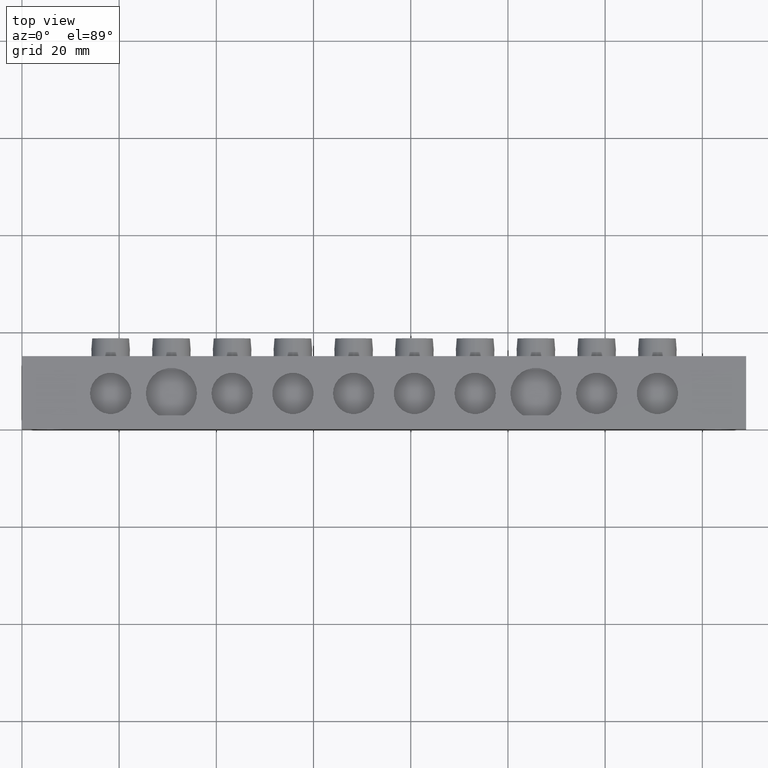
[diagram: clean part render]
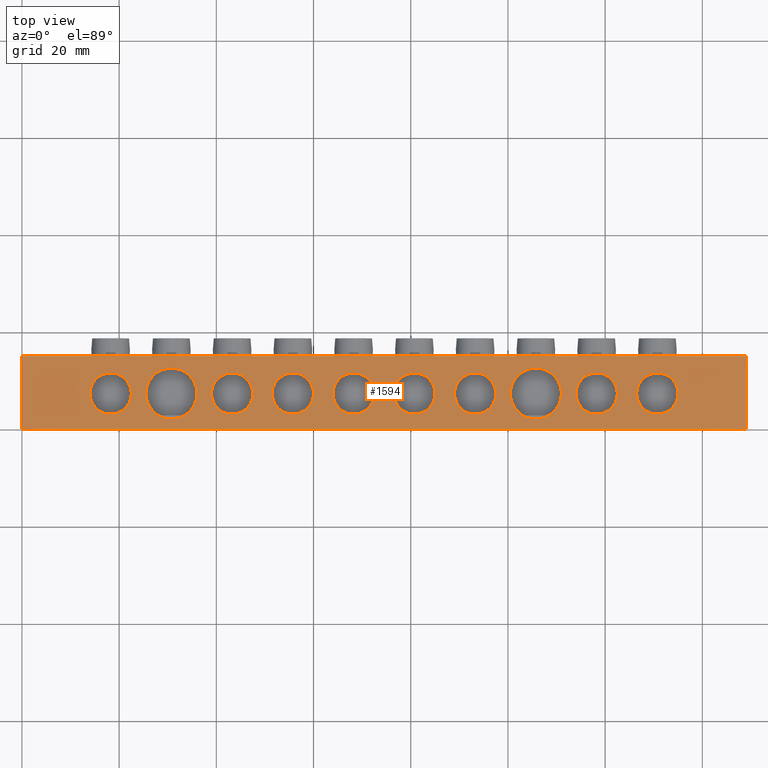
[diagram: same view with one face highlighted and labeled with its STEP entity id]
A machine part, top view. The second image highlights one B-rep face of the part: STEP entity #1594.
In plain terms, the highlighted planar face has unit normal (0, 0, -1).
Its self-contained STEP definition (entity closure, byte-faithful):
#182 = VERTEX_POINT ( 'NONE', #1309 ) ;
#199 = VERTEX_POINT ( 'NONE', #1294 ) ;
#201 = VERTEX_POINT ( 'NONE', #1296 ) ;
#203 = VERTEX_POINT ( 'NONE', #1289 ) ;
#222 = VERTEX_POINT ( 'NONE', #6000 ) ;
#230 = ORIENTED_EDGE ( 'NONE', *, *, #3902, .F. ) ;
#238 = ORIENTED_EDGE ( 'NONE', *, *, #3831, .F. ) ;
#239 = ORIENTED_EDGE ( 'NONE', *, *, #3887, .F. ) ;
#246 = ORIENTED_EDGE ( 'NONE', *, *, #3790, .F. ) ;
#259 = ORIENTED_EDGE ( 'NONE', *, *, #3814, .F. ) ;
#263 = ORIENTED_EDGE ( 'NONE', *, *, #3913, .F. ) ;
#265 = ORIENTED_EDGE ( 'NONE', *, *, #3819, .F. ) ;
#269 = ORIENTED_EDGE ( 'NONE', *, *, #3874, .F. ) ;
#279 = ORIENTED_EDGE ( 'NONE', *, *, #3631, .F. ) ;
#280 = ORIENTED_EDGE ( 'NONE', *, *, #3671, .F. ) ;
#284 = ORIENTED_EDGE ( 'NONE', *, *, #3911, .F. ) ;
#288 = ORIENTED_EDGE ( 'NONE', *, *, #3893, .F. ) ;
#291 = ORIENTED_EDGE ( 'NONE', *, *, #3822, .F. ) ;
#485 = VERTEX_POINT ( 'NONE', #5983 ) ;
#488 = VERTEX_POINT ( 'NONE', #5985 ) ;
#489 = VERTEX_POINT ( 'NONE', #6020 ) ;
#492 = VERTEX_POINT ( 'NONE', #5986 ) ;
#496 = VERTEX_POINT ( 'NONE', #6027 ) ;
#503 = VERTEX_POINT ( 'NONE', #6018 ) ;
#519 = VERTEX_POINT ( 'NONE', #6005 ) ;
#523 = VERTEX_POINT ( 'NONE', #6022 ) ;
#524 = VERTEX_POINT ( 'NONE', #6014 ) ;
#534 = VERTEX_POINT ( 'NONE', #6015 ) ;
#535 = VERTEX_POINT ( 'NONE', #6011 ) ;
#557 = VERTEX_POINT ( 'NONE', #6030 ) ;
#937 = EDGE_LOOP ( 'NONE', ( #230, #265 ) ) ;
#990 = EDGE_LOOP ( 'NONE', ( #288, #259 ) ) ;
#998 = EDGE_LOOP ( 'NONE', ( #269, #280 ) ) ;
#1003 = EDGE_LOOP ( 'NONE', ( #6476, #6479, #6506, #6477 ) ) ;
#1005 = EDGE_LOOP ( 'NONE', ( #239, #279 ) ) ;
#1007 = EDGE_LOOP ( 'NONE', ( #1323, #1312 ) ) ;
#1013 = EDGE_LOOP ( 'NONE', ( #263, #238 ) ) ;
#1020 = EDGE_LOOP ( 'NONE', ( #6507, #6509 ) ) ;
#1028 = EDGE_LOOP ( 'NONE', ( #284, #291 ) ) ;
#1036 = EDGE_LOOP ( 'NONE', ( #1319, #246 ) ) ;
#1037 = EDGE_LOOP ( 'NONE', ( #6510, #6511 ) ) ;
#1289 = CARTESIAN_POINT ( 'NONE',  ( 25.50000000000000400, 7.299999999999999800, 0.0000000000000000000 ) ) ;
#1294 = CARTESIAN_POINT ( 'NONE',  ( 22.50000000000000000, 7.299999999999998900, 0.0000000000000000000 ) ) ;
#1296 = CARTESIAN_POINT ( 'NONE',  ( 135.0000000000000000, 7.299999999999998900, 0.0000000000000000000 ) ) ;
#1309 = CARTESIAN_POINT ( 'NONE',  ( 51.50000000000000700, 7.299999999999798200, 0.0000000000000000000 ) ) ;
#1312 = ORIENTED_EDGE ( 'NONE', *, *, #3805, .F. ) ;
#1319 = ORIENTED_EDGE ( 'NONE', *, *, #3888, .F. ) ;
#1323 = ORIENTED_EDGE ( 'NONE', *, *, #3922, .F. ) ;
#1594 = ADVANCED_FACE ( 'NONE', ( #5546, #5580, #5618, #5584, #5545, #5619, #5592, #5634, #5587, #5561, #5603 ), #5599, .F. ) ;
#1765 = DIRECTION ( 'NONE',  ( -0.0000000000000000000, -0.0000000000000000000, 1.000000000000000000 ) ) ;
#1772 = DIRECTION ( 'NONE',  ( 1.000000000000000000, 0.0000000000000000000, 0.0000000000000000000 ) ) ;
#1774 = DIRECTION ( 'NONE',  ( 0.0000000000000000000, 0.0000000000000000000, 1.000000000000000000 ) ) ;
#1783 = CARTESIAN_POINT ( 'NONE',  ( 118.2500000000000300, 7.299999999999999800, 0.0000000000000000000 ) ) ;
#1788 = DIRECTION ( 'NONE',  ( 0.0000000000000000000, 0.0000000000000000000, 1.000000000000000000 ) ) ;
#1799 = DIRECTION ( 'NONE',  ( 1.000000000000000000, 0.0000000000000000000, 0.0000000000000000000 ) ) ;
#1800 = CARTESIAN_POINT ( 'NONE',  ( 80.75000000000000000, 7.299999999999971400, 0.0000000000000000000 ) ) ;
#1801 = CARTESIAN_POINT ( 'NONE',  ( 30.75000000000000000, 7.299999999999998900, 0.0000000000000000000 ) ) ;
#1838 = DIRECTION ( 'NONE',  ( -1.000000000000000000, 0.0000000000000000000, 0.0000000000000000000 ) ) ;
#1843 = DIRECTION ( 'NONE',  ( 1.000000000000000000, 0.0000000000000000000, 0.0000000000000000000 ) ) ;
#1854 = DIRECTION ( 'NONE',  ( 0.0000000000000000000, 0.0000000000000000000, 1.000000000000000000 ) ) ;
#1861 = CARTESIAN_POINT ( 'NONE',  ( 130.7500000000000000, 7.299999999999998900, 0.0000000000000000000 ) ) ;
#1878 = CARTESIAN_POINT ( 'NONE',  ( 105.7500000000000100, 7.300000000000002500, 0.0000000000000000000 ) ) ;
#1880 = DIRECTION ( 'NONE',  ( 0.0000000000000000000, 0.0000000000000000000, 1.000000000000000000 ) ) ;
#1881 = DIRECTION ( 'NONE',  ( 0.0000000000000000000, 0.0000000000000000000, 1.000000000000000000 ) ) ;
#1883 = DIRECTION ( 'NONE',  ( 1.000000000000000000, 0.0000000000000000000, 0.0000000000000000000 ) ) ;
#1888 = DIRECTION ( 'NONE',  ( -1.000000000000000000, 0.0000000000000000000, 0.0000000000000000000 ) ) ;
#1890 = CARTESIAN_POINT ( 'NONE',  ( 68.25000000000000000, 7.299999999999883500, 0.0000000000000000000 ) ) ;
#1893 = DIRECTION ( 'NONE',  ( -0.0000000000000000000, -0.0000000000000000000, 1.000000000000000000 ) ) ;
#1895 = CARTESIAN_POINT ( 'NONE',  ( 43.25000000000001400, 7.299999999999709400, 0.0000000000000000000 ) ) ;
#1897 = DIRECTION ( 'NONE',  ( 1.000000000000000000, 0.0000000000000000000, 0.0000000000000000000 ) ) ;
#1903 = CARTESIAN_POINT ( 'NONE',  ( 93.25000000000000000, 7.299999999999971400, 0.0000000000000000000 ) ) ;
#1904 = DIRECTION ( 'NONE',  ( 1.000000000000000000, 0.0000000000000000000, 0.0000000000000000000 ) ) ;
#1915 = DIRECTION ( 'NONE',  ( 0.0000000000000000000, 0.0000000000000000000, 1.000000000000000000 ) ) ;
#1938 = LINE ( 'NONE', #1969, #2532 ) ;
#1939 = DIRECTION ( 'NONE',  ( -0.0000000000000000000, -1.000000000000000000, -0.0000000000000000000 ) ) ;
#1941 = DIRECTION ( 'NONE',  ( 0.0000000000000000000, 0.0000000000000000000, 1.000000000000000000 ) ) ;
#1948 = CARTESIAN_POINT ( 'NONE',  ( 80.75000000000000000, 7.299999999999971400, 0.0000000000000000000 ) ) ;
#1961 = DIRECTION ( 'NONE',  ( 1.000000000000000000, 0.0000000000000000000, 0.0000000000000000000 ) ) ;
#1969 = CARTESIAN_POINT ( 'NONE',  ( 149.0000000000000000, 15.00000000000000000, 0.0000000000000000000 ) ) ;
#2001 = CARTESIAN_POINT ( 'NONE',  ( 55.75000000000000700, 7.299999999999797300, 0.0000000000000000000 ) ) ;
#2002 = DIRECTION ( 'NONE',  ( 0.0000000000000000000, 0.0000000000000000000, 1.000000000000000000 ) ) ;
#2003 = DIRECTION ( 'NONE',  ( 1.000000000000000000, 0.0000000000000000000, 0.0000000000000000000 ) ) ;
#2004 = DIRECTION ( 'NONE',  ( -0.0000000000000000000, -0.0000000000000000000, 1.000000000000000000 ) ) ;
#2005 = DIRECTION ( 'NONE',  ( -1.000000000000000000, 0.0000000000000000000, 0.0000000000000000000 ) ) ;
#2006 = CARTESIAN_POINT ( 'NONE',  ( 118.2500000000000300, 7.299999999999999800, 0.0000000000000000000 ) ) ;
#2026 = DIRECTION ( 'NONE',  ( -1.000000000000000000, 0.0000000000000000000, 0.0000000000000000000 ) ) ;
#2030 = DIRECTION ( 'NONE',  ( -0.0000000000000000000, -0.0000000000000000000, 1.000000000000000000 ) ) ;
#2034 = CARTESIAN_POINT ( 'NONE',  ( 105.7500000000000100, 7.300000000000002500, 0.0000000000000000000 ) ) ;
#2041 = LINE ( 'NONE', #2072, #2552 ) ;
#2043 = DIRECTION ( 'NONE',  ( 0.0000000000000000000, 1.000000000000000000, 0.0000000000000000000 ) ) ;
#2044 = CARTESIAN_POINT ( 'NONE',  ( 0.0000000000000000000, 15.00000000000000000, 0.0000000000000000000 ) ) ;
#2046 = LINE ( 'NONE', #2047, #2584 ) ;
#2047 = CARTESIAN_POINT ( 'NONE',  ( 0.0000000000000000000, 15.00000000000000000, 0.0000000000000000000 ) ) ;
#2049 = DIRECTION ( 'NONE',  ( 0.0000000000000000000, 0.0000000000000000000, 1.000000000000000000 ) ) ;
#2050 = CARTESIAN_POINT ( 'NONE',  ( 18.25000000000000000, 7.299999999999998900, 0.0000000000000000000 ) ) ;
#2054 = DIRECTION ( 'NONE',  ( 1.000000000000000000, 0.0000000000000000000, 0.0000000000000000000 ) ) ;
#2056 = DIRECTION ( 'NONE',  ( 1.000000000000000000, 0.0000000000000000000, 0.0000000000000000000 ) ) ;
#2060 = LINE ( 'NONE', #2044, #2575 ) ;
#2066 = CARTESIAN_POINT ( 'NONE',  ( 68.25000000000000000, 7.299999999999883500, 0.0000000000000000000 ) ) ;
#2067 = DIRECTION ( 'NONE',  ( 0.0000000000000000000, 0.0000000000000000000, 1.000000000000000000 ) ) ;
#2072 = CARTESIAN_POINT ( 'NONE',  ( 0.0000000000000000000, 0.0000000000000000000, 0.0000000000000000000 ) ) ;
#2074 = CARTESIAN_POINT ( 'NONE',  ( 43.25000000000001400, 7.299999999999709400, 0.0000000000000000000 ) ) ;
#2075 = DIRECTION ( 'NONE',  ( 1.000000000000000000, 0.0000000000000000000, 0.0000000000000000000 ) ) ;
#2084 = DIRECTION ( 'NONE',  ( 1.000000000000000000, 0.0000000000000000000, 0.0000000000000000000 ) ) ;
#2085 = DIRECTION ( 'NONE',  ( 1.000000000000000000, 0.0000000000000000000, 0.0000000000000000000 ) ) ;
#2087 = DIRECTION ( 'NONE',  ( 0.0000000000000000000, 0.0000000000000000000, 1.000000000000000000 ) ) ;
#2089 = DIRECTION ( 'NONE',  ( 1.000000000000000000, -0.0000000000000000000, 0.0000000000000000000 ) ) ;
#2090 = CARTESIAN_POINT ( 'NONE',  ( 30.75000000000000000, 7.299999999999998900, 0.0000000000000000000 ) ) ;
#2096 = DIRECTION ( 'NONE',  ( 0.0000000000000000000, 0.0000000000000000000, 1.000000000000000000 ) ) ;
#2100 = DIRECTION ( 'NONE',  ( -1.000000000000000000, 0.0000000000000000000, -0.0000000000000000000 ) ) ;
#2106 = CARTESIAN_POINT ( 'NONE',  ( 93.25000000000000000, 7.299999999999971400, 0.0000000000000000000 ) ) ;
#2107 = DIRECTION ( 'NONE',  ( 0.0000000000000000000, 0.0000000000000000000, 1.000000000000000000 ) ) ;
#2387 = DIRECTION ( 'NONE',  ( 0.0000000000000000000, 0.0000000000000000000, 1.000000000000000000 ) ) ;
#2388 = DIRECTION ( 'NONE',  ( 1.000000000000000000, 0.0000000000000000000, 0.0000000000000000000 ) ) ;
#2391 = CARTESIAN_POINT ( 'NONE',  ( 55.75000000000000700, 7.299999999999797300, 0.0000000000000000000 ) ) ;
#2402 = CARTESIAN_POINT ( 'NONE',  ( 18.25000000000000000, 7.299999999999998900, 0.0000000000000000000 ) ) ;
#2404 = DIRECTION ( 'NONE',  ( 0.0000000000000000000, 0.0000000000000000000, 1.000000000000000000 ) ) ;
#2411 = DIRECTION ( 'NONE',  ( 1.000000000000000000, 0.0000000000000000000, 0.0000000000000000000 ) ) ;
#2427 = CIRCLE ( 'NONE', #2428, 4.250000000000003600 ) ;
#2428 = AXIS2_PLACEMENT_3D ( 'NONE', #1861, #1854, #1843 ) ;
#2432 = AXIS2_PLACEMENT_3D ( 'NONE', #1800, #1788, #1772 ) ;
#2445 = AXIS2_PLACEMENT_3D ( 'NONE', #1801, #1774, #1799 ) ;
#2446 = AXIS2_PLACEMENT_3D ( 'NONE', #1783, #1765, #1838 ) ;
#2456 = CIRCLE ( 'NONE', #2446, 4.250000000000003600 ) ;
#2466 = CIRCLE ( 'NONE', #2445, 5.249999999999997300 ) ;
#2472 = CIRCLE ( 'NONE', #2432, 4.250000000000003600 ) ;
#2485 = CIRCLE ( 'NONE', #2537, 5.250000000000004400 ) ;
#2495 = CIRCLE ( 'NONE', #2544, 4.250000000000003600 ) ;
#2498 = CIRCLE ( 'NONE', #2499, 4.250000000000003600 ) ;
#2499 = AXIS2_PLACEMENT_3D ( 'NONE', #2001, #2002, #2003 ) ;
#2508 = CIRCLE ( 'NONE', #2533, 4.250000000000003600 ) ;
#2514 = AXIS2_PLACEMENT_3D ( 'NONE', #1948, #1941, #1961 ) ;
#2523 = CIRCLE ( 'NONE', #2529, 4.250000000000003600 ) ;
#2529 = AXIS2_PLACEMENT_3D ( 'NONE', #1895, #1881, #1883 ) ;
#2530 = CIRCLE ( 'NONE', #2538, 4.250000000000003600 ) ;
#2532 = VECTOR ( 'NONE', #1939, 1000.000000000000000 ) ;
#2533 = AXIS2_PLACEMENT_3D ( 'NONE', #2006, #2004, #2005 ) ;
#2537 = AXIS2_PLACEMENT_3D ( 'NONE', #1878, #1893, #1888 ) ;
#2538 = AXIS2_PLACEMENT_3D ( 'NONE', #1903, #1915, #1904 ) ;
#2541 = CIRCLE ( 'NONE', #2514, 4.250000000000003600 ) ;
#2544 = AXIS2_PLACEMENT_3D ( 'NONE', #1890, #1880, #1897 ) ;
#2548 = CIRCLE ( 'NONE', #2589, 4.250000000000003600 ) ;
#2549 = AXIS2_PLACEMENT_3D ( 'NONE', #2034, #2030, #2026 ) ;
#2552 = VECTOR ( 'NONE', #2100, 1000.000000000000000 ) ;
#2564 = AXIS2_PLACEMENT_3D ( 'NONE', #2050, #2049, #2056 ) ;
#2566 = CIRCLE ( 'NONE', #2573, 4.250000000000003600 ) ;
#2569 = AXIS2_PLACEMENT_3D ( 'NONE', #3519, #3523, #3520 ) ;
#2571 = CIRCLE ( 'NONE', #2569, 4.250000000000003600 ) ;
#2573 = AXIS2_PLACEMENT_3D ( 'NONE', #2066, #2067, #2054 ) ;
#2575 = VECTOR ( 'NONE', #2043, 1000.000000000000000 ) ;
#2577 = AXIS2_PLACEMENT_3D ( 'NONE', #2090, #2107, #2075 ) ;
#2581 = CIRCLE ( 'NONE', #2577, 5.249999999999997300 ) ;
#2584 = VECTOR ( 'NONE', #2089, 1000.000000000000000 ) ;
#2589 = AXIS2_PLACEMENT_3D ( 'NONE', #2106, #2087, #2084 ) ;
#2593 = CIRCLE ( 'NONE', #2564, 4.250000000000000000 ) ;
#2599 = CIRCLE ( 'NONE', #2602, 4.250000000000003600 ) ;
#2602 = AXIS2_PLACEMENT_3D ( 'NONE', #2074, #2096, #2085 ) ;
#2607 = CIRCLE ( 'NONE', #2549, 5.250000000000004400 ) ;
#3054 = AXIS2_PLACEMENT_3D ( 'NONE', #5596, #5593, #5597 ) ;
#3216 = AXIS2_PLACEMENT_3D ( 'NONE', #2402, #2404, #2411 ) ;
#3229 = CIRCLE ( 'NONE', #3256, 4.250000000000003600 ) ;
#3247 = CIRCLE ( 'NONE', #3216, 4.250000000000000000 ) ;
#3256 = AXIS2_PLACEMENT_3D ( 'NONE', #2391, #2387, #2388 ) ;
#3519 = CARTESIAN_POINT ( 'NONE',  ( 130.7500000000000000, 7.299999999999998900, 0.0000000000000000000 ) ) ;
#3520 = DIRECTION ( 'NONE',  ( 1.000000000000000000, 0.0000000000000000000, 0.0000000000000000000 ) ) ;
#3523 = DIRECTION ( 'NONE',  ( 0.0000000000000000000, 0.0000000000000000000, 1.000000000000000000 ) ) ;
#3631 = EDGE_CURVE ( 'NONE', #182, #535, #3229, .T. ) ;
#3635 = EDGE_CURVE ( 'NONE', #557, #199, #3247, .T. ) ;
#3671 = EDGE_CURVE ( 'NONE', #503, #492, #2472, .T. ) ;
#3673 = EDGE_CURVE ( 'NONE', #203, #222, #2466, .T. ) ;
#3790 = EDGE_CURVE ( 'NONE', #534, #488, #2456, .T. ) ;
#3805 = EDGE_CURVE ( 'NONE', #6375, #201, #2427, .T. ) ;
#3814 = EDGE_CURVE ( 'NONE', #523, #489, #2485, .T. ) ;
#3819 = EDGE_CURVE ( 'NONE', #496, #524, #2495, .T. ) ;
#3822 = EDGE_CURVE ( 'NONE', #6800, #6741, #2523, .T. ) ;
#3831 = EDGE_CURVE ( 'NONE', #519, #485, #2530, .T. ) ;
#3868 = EDGE_CURVE ( 'NONE', #6526, #6514, #1938, .T. ) ;
#3874 = EDGE_CURVE ( 'NONE', #492, #503, #2541, .T. ) ;
#3887 = EDGE_CURVE ( 'NONE', #535, #182, #2498, .T. ) ;
#3888 = EDGE_CURVE ( 'NONE', #488, #534, #2508, .T. ) ;
#3893 = EDGE_CURVE ( 'NONE', #489, #523, #2607, .T. ) ;
#3899 = EDGE_CURVE ( 'NONE', #199, #557, #2593, .T. ) ;
#3901 = EDGE_CURVE ( 'NONE', #6535, #6539, #2060, .T. ) ;
#3902 = EDGE_CURVE ( 'NONE', #524, #496, #2566, .T. ) ;
#3904 = EDGE_CURVE ( 'NONE', #6539, #6526, #2046, .T. ) ;
#3907 = EDGE_CURVE ( 'NONE', #6514, #6535, #2041, .T. ) ;
#3911 = EDGE_CURVE ( 'NONE', #6741, #6800, #2599, .T. ) ;
#3913 = EDGE_CURVE ( 'NONE', #485, #519, #2548, .T. ) ;
#3916 = EDGE_CURVE ( 'NONE', #222, #203, #2581, .T. ) ;
#3922 = EDGE_CURVE ( 'NONE', #201, #6375, #2571, .T. ) ;
#4959 = CARTESIAN_POINT ( 'NONE',  ( 126.5000000000000000, 7.299999999999999800, 0.0000000000000000000 ) ) ;
#5006 = CARTESIAN_POINT ( 'NONE',  ( 149.0000000000000000, 0.0000000000000000000, 0.0000000000000000000 ) ) ;
#5007 = CARTESIAN_POINT ( 'NONE',  ( 39.00000000000001400, 7.299999999999710300, 0.0000000000000000000 ) ) ;
#5009 = CARTESIAN_POINT ( 'NONE',  ( 47.50000000000002100, 7.299999999999709400, 0.0000000000000000000 ) ) ;
#5015 = CARTESIAN_POINT ( 'NONE',  ( 0.0000000000000000000, 15.00000000000000000, 0.0000000000000000000 ) ) ;
#5034 = CARTESIAN_POINT ( 'NONE',  ( 149.0000000000000000, 15.00000000000000000, 0.0000000000000000000 ) ) ;
#5055 = CARTESIAN_POINT ( 'NONE',  ( 0.0000000000000000000, 0.0000000000000000000, 0.0000000000000000000 ) ) ;
#5545 = FACE_BOUND ( 'NONE', #1036, .T. ) ;
#5546 = FACE_OUTER_BOUND ( 'NONE', #1003, .T. ) ;
#5561 = FACE_BOUND ( 'NONE', #1005, .T. ) ;
#5580 = FACE_BOUND ( 'NONE', #1020, .T. ) ;
#5584 = FACE_BOUND ( 'NONE', #1007, .T. ) ;
#5587 = FACE_BOUND ( 'NONE', #937, .T. ) ;
#5592 = FACE_BOUND ( 'NONE', #998, .T. ) ;
#5593 = DIRECTION ( 'NONE',  ( 0.0000000000000000000, 0.0000000000000000000, -1.000000000000000000 ) ) ;
#5596 = CARTESIAN_POINT ( 'NONE',  ( 0.0000000000000000000, 15.00000000000000000, 0.0000000000000000000 ) ) ;
#5597 = DIRECTION ( 'NONE',  ( -1.000000000000000000, 0.0000000000000000000, -0.0000000000000000000 ) ) ;
#5599 = PLANE ( 'NONE',  #3054 ) ;
#5603 = FACE_BOUND ( 'NONE', #1028, .T. ) ;
#5618 = FACE_BOUND ( 'NONE', #1037, .T. ) ;
#5619 = FACE_BOUND ( 'NONE', #990, .T. ) ;
#5634 = FACE_BOUND ( 'NONE', #1013, .T. ) ;
#5983 = CARTESIAN_POINT ( 'NONE',  ( 97.50000000000000000, 7.299999999999971400, 0.0000000000000000000 ) ) ;
#5985 = CARTESIAN_POINT ( 'NONE',  ( 122.5000000000000300, 7.299999999999999800, 0.0000000000000000000 ) ) ;
#5986 = CARTESIAN_POINT ( 'NONE',  ( 85.00000000000000000, 7.299999999999971400, 0.0000000000000000000 ) ) ;
#6000 = CARTESIAN_POINT ( 'NONE',  ( 36.00000000000000000, 7.299999999999998900, 0.0000000000000000000 ) ) ;
#6005 = CARTESIAN_POINT ( 'NONE',  ( 89.00000000000000000, 7.299999999999972300, 0.0000000000000000000 ) ) ;
#6011 = CARTESIAN_POINT ( 'NONE',  ( 60.00000000000001400, 7.299999999999797300, 0.0000000000000000000 ) ) ;
#6014 = CARTESIAN_POINT ( 'NONE',  ( 72.50000000000001400, 7.299999999999883500, 0.0000000000000000000 ) ) ;
#6015 = CARTESIAN_POINT ( 'NONE',  ( 114.0000000000000100, 7.300000000000000700, 0.0000000000000000000 ) ) ;
#6018 = CARTESIAN_POINT ( 'NONE',  ( 76.50000000000000000, 7.299999999999972300, 0.0000000000000000000 ) ) ;
#6020 = CARTESIAN_POINT ( 'NONE',  ( 111.0000000000000100, 7.300000000000002500, 0.0000000000000000000 ) ) ;
#6022 = CARTESIAN_POINT ( 'NONE',  ( 100.5000000000000000, 7.300000000000003400, 0.0000000000000000000 ) ) ;
#6027 = CARTESIAN_POINT ( 'NONE',  ( 64.00000000000000000, 7.299999999999884400, 0.0000000000000000000 ) ) ;
#6030 = CARTESIAN_POINT ( 'NONE',  ( 13.99999999999999800, 7.299999999999999800, 0.0000000000000000000 ) ) ;
#6375 = VERTEX_POINT ( 'NONE', #4959 ) ;
#6476 = ORIENTED_EDGE ( 'NONE', *, *, #3868, .F. ) ;
#6477 = ORIENTED_EDGE ( 'NONE', *, *, #3907, .F. ) ;
#6479 = ORIENTED_EDGE ( 'NONE', *, *, #3904, .F. ) ;
#6506 = ORIENTED_EDGE ( 'NONE', *, *, #3901, .F. ) ;
#6507 = ORIENTED_EDGE ( 'NONE', *, *, #3899, .F. ) ;
#6509 = ORIENTED_EDGE ( 'NONE', *, *, #3635, .F. ) ;
#6510 = ORIENTED_EDGE ( 'NONE', *, *, #3916, .F. ) ;
#6511 = ORIENTED_EDGE ( 'NONE', *, *, #3673, .F. ) ;
#6514 = VERTEX_POINT ( 'NONE', #5006 ) ;
#6526 = VERTEX_POINT ( 'NONE', #5034 ) ;
#6535 = VERTEX_POINT ( 'NONE', #5055 ) ;
#6539 = VERTEX_POINT ( 'NONE', #5015 ) ;
#6741 = VERTEX_POINT ( 'NONE', #5009 ) ;
#6800 = VERTEX_POINT ( 'NONE', #5007 ) ;